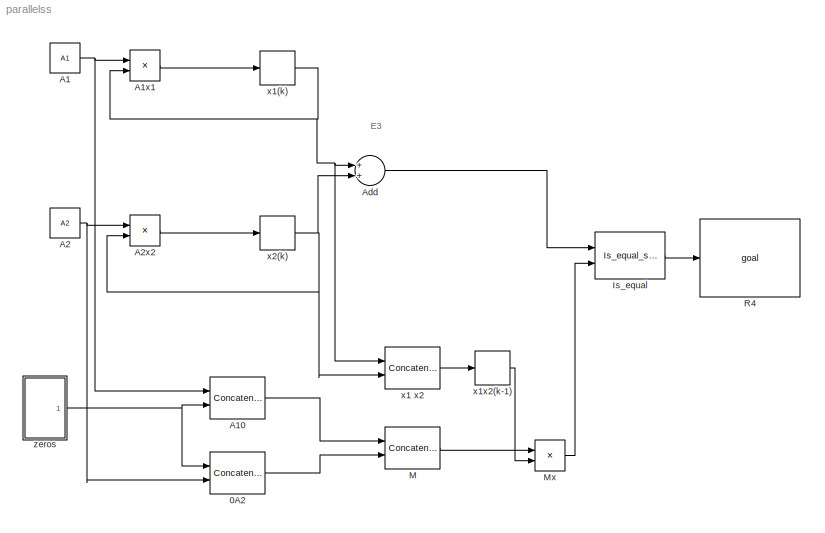
MODEL parallelss
KIND model
BLOCK [Concatenate] 0A2
  ConcatenateDimension = 2
  Mode = Multidimensional array
  Ports = [2, 1]
  SID = 21
BLOCK [Constant] A1
  SID = 1
  Value = A1
  VectorParams1D = off
BLOCK [Concatenate] A10
  ConcatenateDimension = 2
  Mode = Multidimensional array
  Ports = [2, 1]
  SID = 20
BLOCK [Product] A1x1
  InputSameDT = off
  Multiplication = Matrix(*)
  OutDataTypeStr = Inherit: Inherit via internal rule
  Ports = [2, 1]
  RndMeth = Floor
  SID = 4
  SaturateOnIntegerOverflow = off
BLOCK [Constant] A2
  SID = 2
  Value = A2
  VectorParams1D = off
BLOCK [Product] A2x2
  InputSameDT = off
  Multiplication = Matrix(*)
  OutDataTypeStr = Inherit: Inherit via internal rule
  Ports = [2, 1]
  RndMeth = Floor
  SID = 3
  SaturateOnIntegerOverflow = off
BLOCK [Sum] Add
  InputSameDT = off
  OutDataTypeStr = Inherit: Inherit via internal rule
  Ports = [2, 1]
  SID = 13
  SaturateOnIntegerOverflow = off
BLOCK [Reference] Is_equal  REF=Is_equal_scalar/Is_equal_scalar
  FunctionWithSeparateData = off
  GeneratePreprocessorConditionals = off
  Ports = [2, 1]
  SID = 22
  ShowPortLabels = FromPortIcon
  SourceBlock = Is_equal_scalar/Is_equal_scalar
  SourceType = Is_equal_scalar
  SystemSampleTime = -1
BLOCK [Concatenate] M
  Mode = Multidimensional array
  Ports = [2, 1]
  SID = 15
BLOCK [Product] Mx
  InputSameDT = off
  Multiplication = Matrix(*)
  OutDataTypeStr = Inherit: Inherit via internal rule
  Ports = [2, 1]
  RndMeth = Floor
  SID = 19
  SaturateOnIntegerOverflow = off
BLOCK [Reference] R4  REF=goal/goal  (lib defined in mdl_8f4c38bfa861)
  FunctionWithSeparateData = off
  GeneratePreprocessorConditionals = off
  Ports = [1]
  SID = 23
  ShowPortLabels = FromPortIcon
  SourceBlock = goal/goal
  SourceType = Goal
  SystemSampleTime = -1
BLOCK [Concatenate] x1 x2
  Mode = Multidimensional array
  Ports = [2, 1]
  SID = 10
BLOCK [Delay] x1(k)
  DelayLength = 1
  InitialCondition = x1
  InputPortMap = u0
  Ports = [1, 1]
  SID = 8
  SampleTime = 0.1
BLOCK [Delay] x1x2(k-1)
  DelayLength = 1
  InitialCondition = x1
  InputPortMap = u0
  Ports = [1, 1]
  SID = 14
  SampleTime = 0.1
BLOCK [Delay] x2(k)
  DelayLength = 1
  InitialCondition = x1
  InputPortMap = u0
  Ports = [1, 1]
  SID = 11
  SampleTime = 0.1
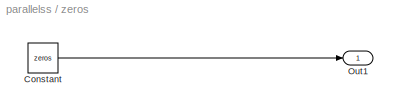
BLOCK [SubSystem] zeros
  FunctionWithSeparateData = off
  MaskHideContents = off
  MinAlgLoopOccurrences = off
  Opaque = off
  Ports = [0, 1]
  PropExecContextOutsideSubsystem = off
  RTWSystemCode = Auto
  RequestExecContextInheritance = off
  SID = 16
BLOCK [Constant] zeros/Constant
  SID = 17
  Value = zeros
  VectorParams1D = off
BLOCK [Outport] zeros/Out1
  IconDisplay = Port number
  SID = 18
ANNOTATION (root): E3
LINE 0A2:1 -> M:2
LINE A10:1 -> M:1
NET A1:1 -> A10:1, A1x1:1
LINE A1x1:1 -> x1(k):1
NET A2:1 -> 0A2:2, A2x2:1
LINE A2x2:1 -> x2(k):1
LINE Add:1 -> Is_equal:1
LINE Is_equal:1 -> R4:1
LINE M:1 -> Mx:1
LINE Mx:1 -> Is_equal:2
LINE x1 x2:1 -> x1x2(k-1):1
NET x1(k):1 -> A1x1:2, Add:1, x1 x2:1
LINE x1x2(k-1):1 -> Mx:2
NET x2(k):1 -> A2x2:2, Add:2, x1 x2:2
LINE zeros/Constant:1 -> zeros/Out1:1
NET zeros:1 -> 0A2:1, A10:2
note: NET lines group one-source signal fan-out (src -> all destinations, sorted); 1:1 wires keep LINE
